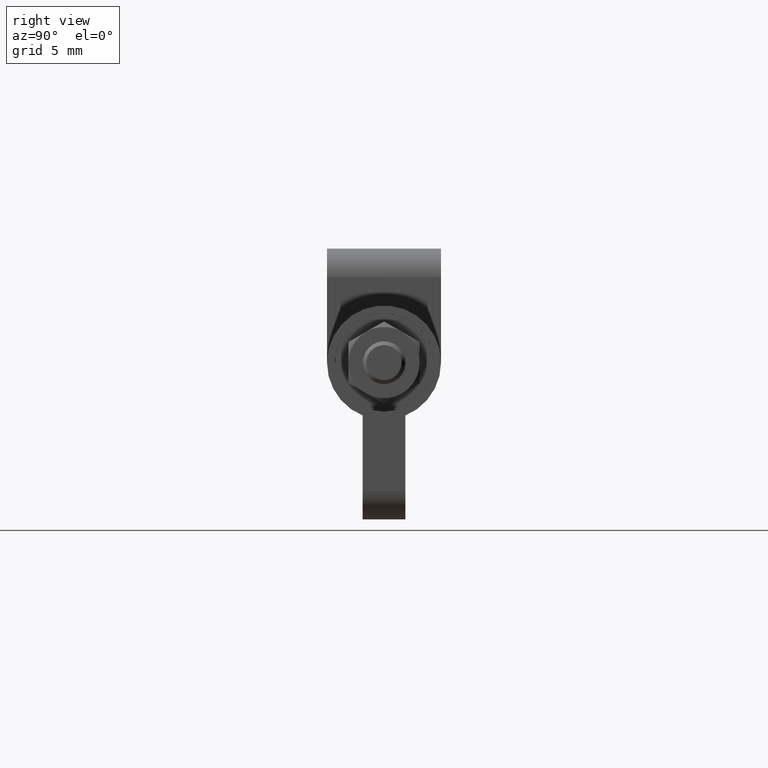
[diagram: clean part render]
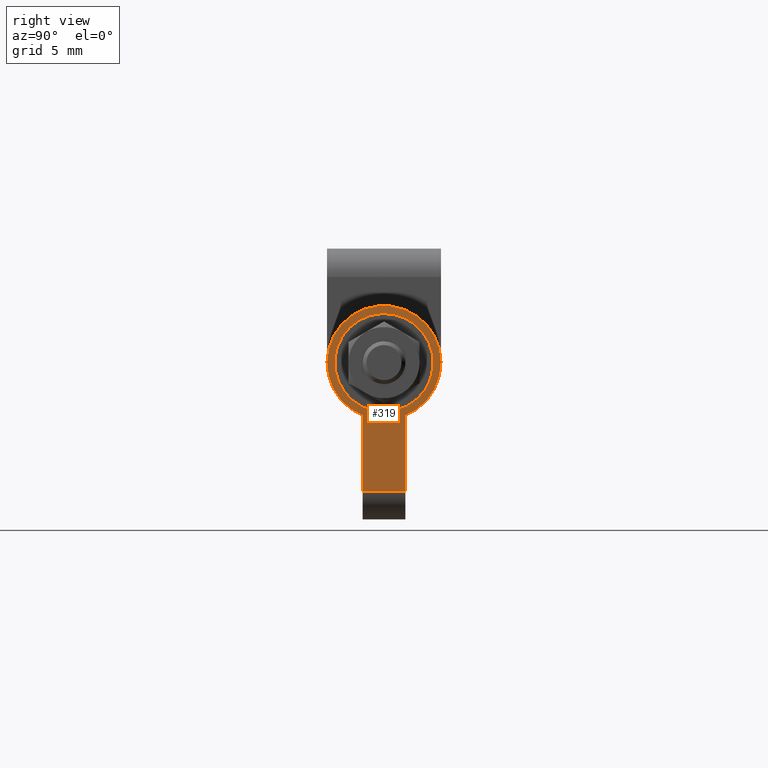
[diagram: same view with one face highlighted and labeled with its STEP entity id]
A machine part, right view. The second image highlights one B-rep face of the part: STEP entity #319.
In plain terms, the highlighted planar face has unit normal (-1, 0, 0).
Its self-contained STEP definition (entity closure, byte-faithful):
#319=ADVANCED_FACE('',(#957,#958),#956,.F.);
#956=PLANE('',#1714);
#957=FACE_OUTER_BOUND('',#1715,.T.);
#958=FACE_BOUND('',#1716,.T.);
#1711=CARTESIAN_POINT('',(2.45000000000E+01,-7.63233583262E+00,8.15398015358E+00));
#1712=DIRECTION('',(-1.00000000000E+00,0.00000000000E+00,0.00000000000E+00));
#1713=DIRECTION('',(0.00000000000E+00,1.00000000000E+00,0.00000000000E+00));
#1714=AXIS2_PLACEMENT_3D('',#1711,#1712,#1713);
#1715=EDGE_LOOP('',(#2206,#2207,#2208,#2209));
#1716=EDGE_LOOP('',(#2210,#2211,#2212));
#2206=ORIENTED_EDGE('',*,*,#2565,.T.);
#2207=ORIENTED_EDGE('',*,*,#2566,.T.);
#2208=ORIENTED_EDGE('',*,*,#2567,.T.);
#2209=ORIENTED_EDGE('',*,*,#2568,.T.);
#2210=ORIENTED_EDGE('',*,*,#2569,.F.);
#2211=ORIENTED_EDGE('',*,*,#2570,.F.);
#2212=ORIENTED_EDGE('',*,*,#2571,.F.);
#2565=EDGE_CURVE('',#3666,#3667,#3668,.T.);
#2566=EDGE_CURVE('',#3667,#3674,#3675,.T.);
#2567=EDGE_CURVE('',#3674,#3681,#3682,.T.);
#2568=EDGE_CURVE('',#3681,#3666,#3688,.T.);
#2569=EDGE_CURVE('',#3694,#3695,#3696,.T.);
#2570=EDGE_CURVE('',#3702,#3694,#3703,.T.);
#2571=EDGE_CURVE('',#3695,#3702,#3709,.T.);
#3666=VERTEX_POINT('',#5156);
#3667=VERTEX_POINT('',#5157);
#3668=LINE('',#5158,#5159);
#3674=VERTEX_POINT('',#5161);
#3675=LINE('',#5162,#5163);
#3681=VERTEX_POINT('',#5165);
#3682=LINE('',#5166,#5167);
#3688=CIRCLE('',#5172,3.99999988284E+00);
#3694=VERTEX_POINT('',#5173);
#3695=VERTEX_POINT('',#5174);
#3696=CIRCLE('',#5178,3.45000000000E+00);
#3702=VERTEX_POINT('',#5179);
#3703=CIRCLE('',#5183,3.45000000000E+00);
#3709=CIRCLE('',#5187,3.45000000000E+00);
#5156=CARTESIAN_POINT('',(2.45000000000E+01,-1.50000000000E+00,-3.70809900000E+00));
#5157=CARTESIAN_POINT('',(2.45000000000E+01,-1.50000000000E+00,-9.00000000000E+00));
#5158=CARTESIAN_POINT('',(2.45000000000E+01,-1.50000000000E+00,-3.70809900000E+00));
#5159=VECTOR('',#5160,5.29190100000E+00);
#5160=DIRECTION('',(0.00000000000E+00,0.00000000000E+00,-1.00000000000E+00));
#5161=CARTESIAN_POINT('',(2.45000000000E+01,1.50000000000E+00,-9.00000000000E+00));
#5162=CARTESIAN_POINT('',(2.45000000000E+01,-1.50000000000E+00,-9.00000000000E+00));
#5163=VECTOR('',#5164,3.00000000000E+00);
#5164=DIRECTION('',(0.00000000000E+00,1.00000000000E+00,0.00000000000E+00));
#5165=CARTESIAN_POINT('',(2.45000000000E+01,1.50000000000E+00,-3.70809900000E+00));
#5166=CARTESIAN_POINT('',(2.45000000000E+01,1.50000000000E+00,-9.00000000000E+00));
#5167=VECTOR('',#5168,5.29190100000E+00);
#5168=DIRECTION('',(0.00000000000E+00,0.00000000000E+00,1.00000000000E+00));
#5169=CARTESIAN_POINT('',(2.45000000000E+01,0.00000000000E+00,1.17162468616E-07));
#5170=DIRECTION('',(1.00000000000E+00,-0.00000000000E+00,0.00000000000E+00));
#5171=DIRECTION('',(0.00000000000E+00,3.75000010984E-01,-9.27024806444E-01));
#5172=AXIS2_PLACEMENT_3D('',#5169,#5170,#5171);
#5173=CARTESIAN_POINT('',(2.45000000000E+01,-3.43935168715E+00,2.70850460766E-01));
#5174=CARTESIAN_POINT('',(2.45000000000E+01,-2.05391259556E-15,-3.45000000000E+00));
#5175=CARTESIAN_POINT('',(2.45000000000E+01,1.55431223448E-15,2.44249065418E-15));
#5176=DIRECTION('',(1.00000000000E+00,-2.85653413457E-17,-3.62957075462E-16));
#5177=DIRECTION('',(-3.62957075462E-16,-6.66133814775E-16,-1.00000000000E+00));
#5178=AXIS2_PLACEMENT_3D('',#5175,#5176,#5177);
#5179=CARTESIAN_POINT('',(2.45000000000E+01,3.43936480137E+00,-2.70683880317E-01));
#5180=CARTESIAN_POINT('',(2.45000000000E+01,1.55431223448E-15,2.44249065418E-15));
#5181=DIRECTION('',(1.00000000000E+00,-2.85653413457E-17,-3.62957075462E-16));
#5182=DIRECTION('',(-3.62957075462E-16,-6.66133814775E-16,-1.00000000000E+00));
#5183=AXIS2_PLACEMENT_3D('',#5180,#5181,#5182);
#5184=CARTESIAN_POINT('',(2.45000000000E+01,1.55431223448E-15,2.44249065418E-15));
#5185=DIRECTION('',(1.00000000000E+00,-2.85653413457E-17,-3.62957075462E-16));
#5186=DIRECTION('',(-3.62957075462E-16,-6.66133814775E-16,-1.00000000000E+00));
#5187=AXIS2_PLACEMENT_3D('',#5184,#5185,#5186);